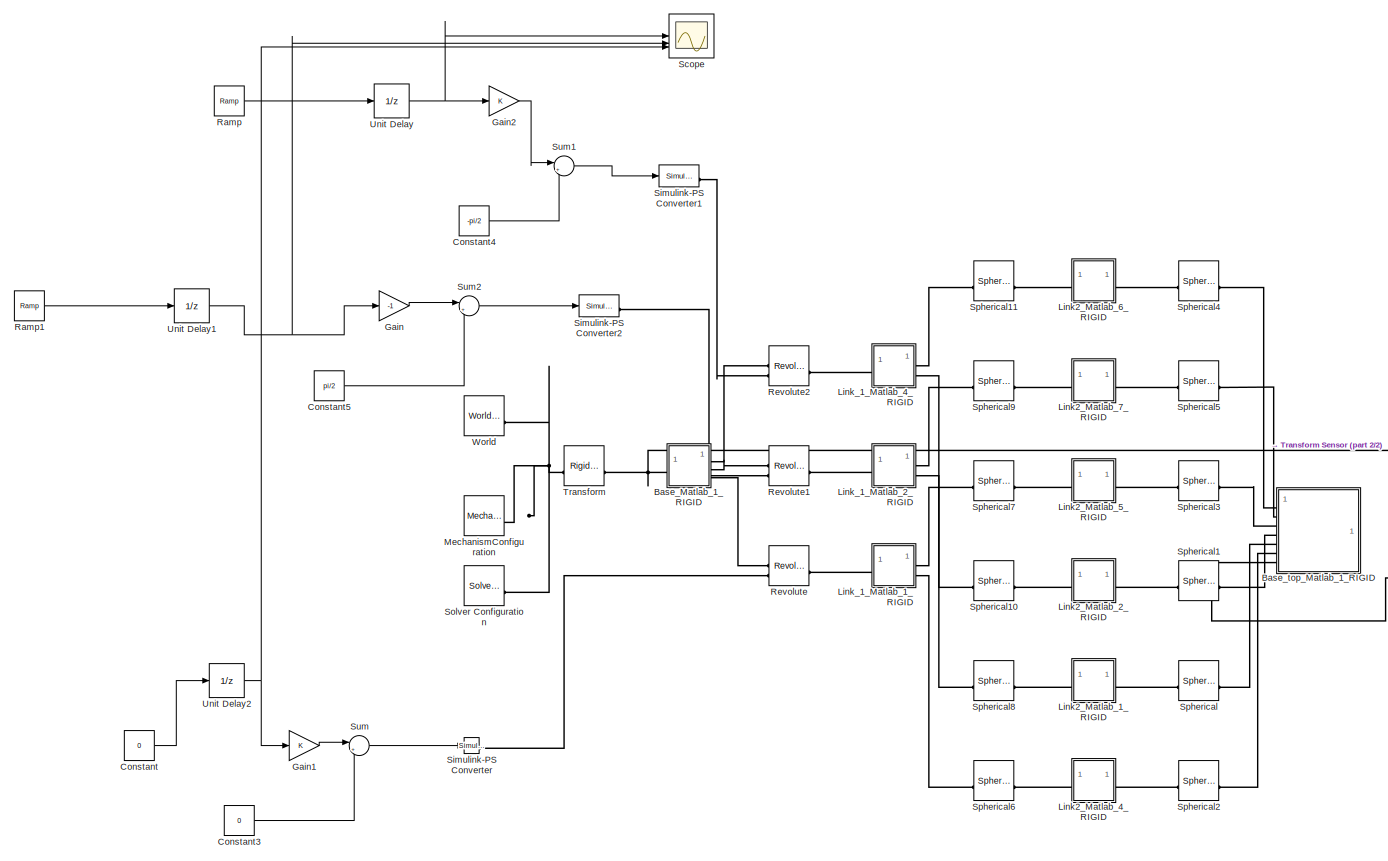
[diagram: root canvas - part 1/2, left side, full height]
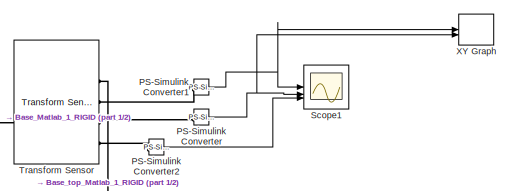
[diagram: root canvas - part 2/2, middle right region]
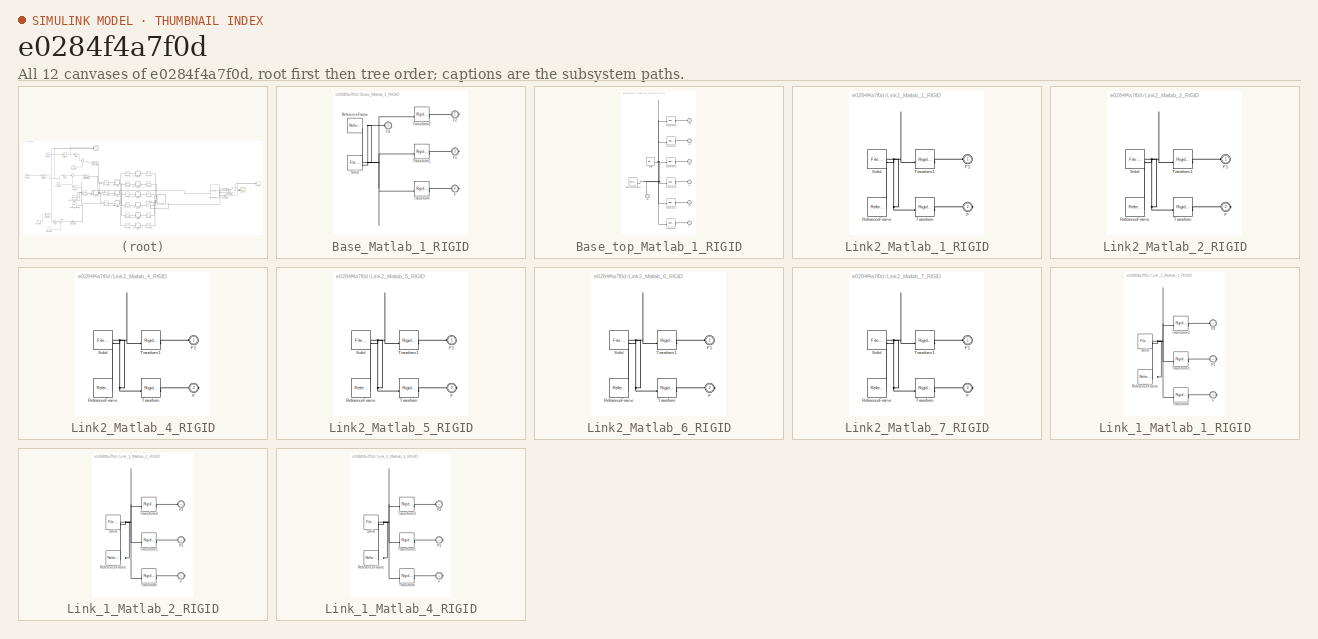
[diagram: thumbnail index - all 12 canvases of the model, root first then tree order]
MODEL slx_e0284f4a7f0d
KIND model
CONFIG AbsTol = auto
CONFIG EnableMultiTasking = off
CONFIG FixedStep = auto
CONFIG MaxStep = auto
CONFIG MinStep = auto
CONFIG RelTol = 0.1
CONFIG SampleTimeConstraint = Unconstrained
CONFIG SolverName = VariableStepAuto
CONFIG StartTime = 0.0
CONFIG StopTime = 12.5
WORKSPACE source: external: MATLAB File  (data not in archive)
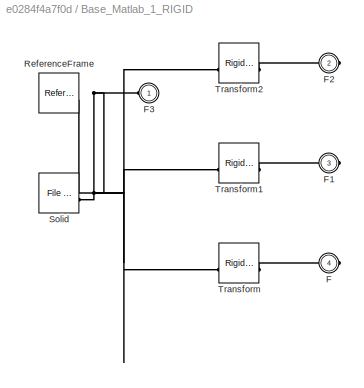
BLOCK [SubSystem] Base_Matlab_1_RIGID
BLOCK [PMIOPort] Base_Matlab_1_RIGID/F
  Port = 4
  Side = Right
BLOCK [PMIOPort] Base_Matlab_1_RIGID/F1
  Port = 3
  Side = Right
BLOCK [PMIOPort] Base_Matlab_1_RIGID/F2
  Port = 2
  Side = Right
BLOCK [PMIOPort] Base_Matlab_1_RIGID/F3
  Side = Left
BLOCK [Reference] Base_Matlab_1_RIGID/ReferenceFrame  REF=sm_lib/Frames and
Transforms/Reference
Frame
  SourceBlock = sm_lib/Frames and\nTransforms/Reference\nFrame
  SourceType = Reference\nFrame
BLOCK [Reference] Base_Matlab_1_RIGID/Solid  REF=sm_lib/Body Elements/File Solid
  SourceBlock = sm_lib/Body Elements/File Solid
  SourceType = File Solid
BLOCK [Reference] Base_Matlab_1_RIGID/Transform  REF=sm_lib/Frames and
Transforms/Rigid
Transform
  SourceBlock = sm_lib/Frames and\nTransforms/Rigid\nTransform
  SourceType = Rigid\nTransform
BLOCK [Reference] Base_Matlab_1_RIGID/Transform1  REF=sm_lib/Frames and
Transforms/Rigid
Transform
  SourceBlock = sm_lib/Frames and\nTransforms/Rigid\nTransform
  SourceType = Rigid\nTransform
BLOCK [Reference] Base_Matlab_1_RIGID/Transform2  REF=sm_lib/Frames and
Transforms/Rigid
Transform
  SourceBlock = sm_lib/Frames and\nTransforms/Rigid\nTransform
  SourceType = Rigid\nTransform
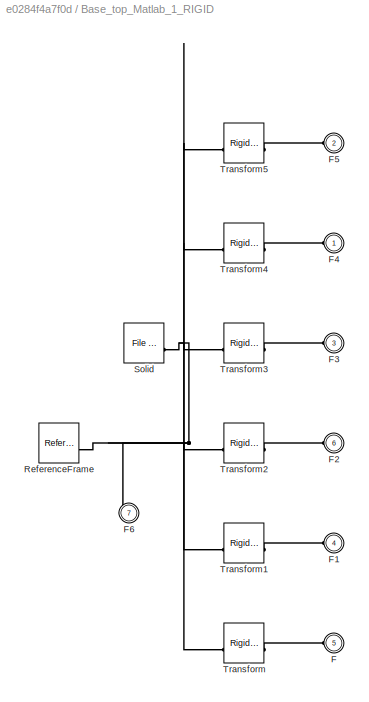
BLOCK [SubSystem] Base_top_Matlab_1_RIGID
BLOCK [PMIOPort] Base_top_Matlab_1_RIGID/F
  Port = 5
  Side = Left
BLOCK [PMIOPort] Base_top_Matlab_1_RIGID/F1
  Port = 4
  Side = Left
BLOCK [PMIOPort] Base_top_Matlab_1_RIGID/F2
  Port = 6
  Side = Left
BLOCK [PMIOPort] Base_top_Matlab_1_RIGID/F3
  Port = 3
  Side = Left
BLOCK [PMIOPort] Base_top_Matlab_1_RIGID/F4
  Side = Left
BLOCK [PMIOPort] Base_top_Matlab_1_RIGID/F5
  Port = 2
  Side = Left
BLOCK [PMIOPort] Base_top_Matlab_1_RIGID/F6
  Port = 7
  Side = Left
BLOCK [Reference] Base_top_Matlab_1_RIGID/ReferenceFrame  REF=sm_lib/Frames and
Transforms/Reference
Frame
  SourceBlock = sm_lib/Frames and\nTransforms/Reference\nFrame
  SourceType = Reference\nFrame
BLOCK [Reference] Base_top_Matlab_1_RIGID/Solid  REF=sm_lib/Body Elements/File Solid
  SourceBlock = sm_lib/Body Elements/File Solid
  SourceType = File Solid
BLOCK [Reference] Base_top_Matlab_1_RIGID/Transform  REF=sm_lib/Frames and
Transforms/Rigid
Transform
  SourceBlock = sm_lib/Frames and\nTransforms/Rigid\nTransform
  SourceType = Rigid\nTransform
BLOCK [Reference] Base_top_Matlab_1_RIGID/Transform1  REF=sm_lib/Frames and
Transforms/Rigid
Transform
  SourceBlock = sm_lib/Frames and\nTransforms/Rigid\nTransform
  SourceType = Rigid\nTransform
BLOCK [Reference] Base_top_Matlab_1_RIGID/Transform2  REF=sm_lib/Frames and
Transforms/Rigid
Transform
  SourceBlock = sm_lib/Frames and\nTransforms/Rigid\nTransform
  SourceType = Rigid\nTransform
BLOCK [Reference] Base_top_Matlab_1_RIGID/Transform3  REF=sm_lib/Frames and
Transforms/Rigid
Transform
  SourceBlock = sm_lib/Frames and\nTransforms/Rigid\nTransform
  SourceType = Rigid\nTransform
BLOCK [Reference] Base_top_Matlab_1_RIGID/Transform4  REF=sm_lib/Frames and
Transforms/Rigid
Transform
  SourceBlock = sm_lib/Frames and\nTransforms/Rigid\nTransform
  SourceType = Rigid\nTransform
BLOCK [Reference] Base_top_Matlab_1_RIGID/Transform5  REF=sm_lib/Frames and
Transforms/Rigid
Transform
  SourceBlock = sm_lib/Frames and\nTransforms/Rigid\nTransform
  SourceType = Rigid\nTransform
BLOCK [Constant] Constant
  Value = 0
BLOCK [Constant] Constant3
  Value = 0
BLOCK [Constant] Constant4
  Value = -pi/2
BLOCK [Constant] Constant5
  Value = pi/2
BLOCK [Gain] Gain
  Gain = -1
BLOCK [Gain] Gain1
BLOCK [Gain] Gain2
BLOCK [SubSystem] Link2_Matlab_1_RIGID
BLOCK [PMIOPort] Link2_Matlab_1_RIGID/F
  Port = 2
  Side = Right
BLOCK [PMIOPort] Link2_Matlab_1_RIGID/F1
  Side = Left
BLOCK [Reference] Link2_Matlab_1_RIGID/ReferenceFrame  REF=sm_lib/Frames and
Transforms/Reference
Frame
  SourceBlock = sm_lib/Frames and\nTransforms/Reference\nFrame
  SourceType = Reference\nFrame
BLOCK [Reference] Link2_Matlab_1_RIGID/Solid  REF=sm_lib/Body Elements/File Solid
  SourceBlock = sm_lib/Body Elements/File Solid
  SourceType = File Solid
BLOCK [Reference] Link2_Matlab_1_RIGID/Transform  REF=sm_lib/Frames and
Transforms/Rigid
Transform
  SourceBlock = sm_lib/Frames and\nTransforms/Rigid\nTransform
  SourceType = Rigid\nTransform
BLOCK [Reference] Link2_Matlab_1_RIGID/Transform1  REF=sm_lib/Frames and
Transforms/Rigid
Transform
  SourceBlock = sm_lib/Frames and\nTransforms/Rigid\nTransform
  SourceType = Rigid\nTransform
BLOCK [SubSystem] Link2_Matlab_2_RIGID
BLOCK [PMIOPort] Link2_Matlab_2_RIGID/F
  Port = 2
  Side = Right
BLOCK [PMIOPort] Link2_Matlab_2_RIGID/F1
  Side = Left
BLOCK [Reference] Link2_Matlab_2_RIGID/ReferenceFrame  REF=sm_lib/Frames and
Transforms/Reference
Frame
  SourceBlock = sm_lib/Frames and\nTransforms/Reference\nFrame
  SourceType = Reference\nFrame
BLOCK [Reference] Link2_Matlab_2_RIGID/Solid  REF=sm_lib/Body Elements/File Solid
  SourceBlock = sm_lib/Body Elements/File Solid
  SourceType = File Solid
BLOCK [Reference] Link2_Matlab_2_RIGID/Transform  REF=sm_lib/Frames and
Transforms/Rigid
Transform
  SourceBlock = sm_lib/Frames and\nTransforms/Rigid\nTransform
  SourceType = Rigid\nTransform
BLOCK [Reference] Link2_Matlab_2_RIGID/Transform1  REF=sm_lib/Frames and
Transforms/Rigid
Transform
  SourceBlock = sm_lib/Frames and\nTransforms/Rigid\nTransform
  SourceType = Rigid\nTransform
BLOCK [SubSystem] Link2_Matlab_4_RIGID
BLOCK [PMIOPort] Link2_Matlab_4_RIGID/F
  Port = 2
  Side = Right
BLOCK [PMIOPort] Link2_Matlab_4_RIGID/F1
  Side = Left
BLOCK [Reference] Link2_Matlab_4_RIGID/ReferenceFrame  REF=sm_lib/Frames and
Transforms/Reference
Frame
  SourceBlock = sm_lib/Frames and\nTransforms/Reference\nFrame
  SourceType = Reference\nFrame
BLOCK [Reference] Link2_Matlab_4_RIGID/Solid  REF=sm_lib/Body Elements/File Solid
  SourceBlock = sm_lib/Body Elements/File Solid
  SourceType = File Solid
BLOCK [Reference] Link2_Matlab_4_RIGID/Transform  REF=sm_lib/Frames and
Transforms/Rigid
Transform
  SourceBlock = sm_lib/Frames and\nTransforms/Rigid\nTransform
  SourceType = Rigid\nTransform
BLOCK [Reference] Link2_Matlab_4_RIGID/Transform1  REF=sm_lib/Frames and
Transforms/Rigid
Transform
  SourceBlock = sm_lib/Frames and\nTransforms/Rigid\nTransform
  SourceType = Rigid\nTransform
BLOCK [SubSystem] Link2_Matlab_5_RIGID
BLOCK [PMIOPort] Link2_Matlab_5_RIGID/F
  Port = 2
  Side = Right
BLOCK [PMIOPort] Link2_Matlab_5_RIGID/F1
  Side = Left
BLOCK [Reference] Link2_Matlab_5_RIGID/ReferenceFrame  REF=sm_lib/Frames and
Transforms/Reference
Frame
  SourceBlock = sm_lib/Frames and\nTransforms/Reference\nFrame
  SourceType = Reference\nFrame
BLOCK [Reference] Link2_Matlab_5_RIGID/Solid  REF=sm_lib/Body Elements/File Solid
  SourceBlock = sm_lib/Body Elements/File Solid
  SourceType = File Solid
BLOCK [Reference] Link2_Matlab_5_RIGID/Transform  REF=sm_lib/Frames and
Transforms/Rigid
Transform
  SourceBlock = sm_lib/Frames and\nTransforms/Rigid\nTransform
  SourceType = Rigid\nTransform
BLOCK [Reference] Link2_Matlab_5_RIGID/Transform1  REF=sm_lib/Frames and
Transforms/Rigid
Transform
  SourceBlock = sm_lib/Frames and\nTransforms/Rigid\nTransform
  SourceType = Rigid\nTransform
BLOCK [SubSystem] Link2_Matlab_6_RIGID
BLOCK [PMIOPort] Link2_Matlab_6_RIGID/F
  Port = 2
  Side = Right
BLOCK [PMIOPort] Link2_Matlab_6_RIGID/F1
  Side = Left
BLOCK [Reference] Link2_Matlab_6_RIGID/ReferenceFrame  REF=sm_lib/Frames and
Transforms/Reference
Frame
  SourceBlock = sm_lib/Frames and\nTransforms/Reference\nFrame
  SourceType = Reference\nFrame
BLOCK [Reference] Link2_Matlab_6_RIGID/Solid  REF=sm_lib/Body Elements/File Solid
  SourceBlock = sm_lib/Body Elements/File Solid
  SourceType = File Solid
BLOCK [Reference] Link2_Matlab_6_RIGID/Transform  REF=sm_lib/Frames and
Transforms/Rigid
Transform
  SourceBlock = sm_lib/Frames and\nTransforms/Rigid\nTransform
  SourceType = Rigid\nTransform
BLOCK [Reference] Link2_Matlab_6_RIGID/Transform1  REF=sm_lib/Frames and
Transforms/Rigid
Transform
  SourceBlock = sm_lib/Frames and\nTransforms/Rigid\nTransform
  SourceType = Rigid\nTransform
BLOCK [SubSystem] Link2_Matlab_7_RIGID
BLOCK [PMIOPort] Link2_Matlab_7_RIGID/F
  Port = 2
  Side = Right
BLOCK [PMIOPort] Link2_Matlab_7_RIGID/F1
  Side = Left
BLOCK [Reference] Link2_Matlab_7_RIGID/ReferenceFrame  REF=sm_lib/Frames and
Transforms/Reference
Frame
  SourceBlock = sm_lib/Frames and\nTransforms/Reference\nFrame
  SourceType = Reference\nFrame
BLOCK [Reference] Link2_Matlab_7_RIGID/Solid  REF=sm_lib/Body Elements/File Solid
  SourceBlock = sm_lib/Body Elements/File Solid
  SourceType = File Solid
BLOCK [Reference] Link2_Matlab_7_RIGID/Transform  REF=sm_lib/Frames and
Transforms/Rigid
Transform
  SourceBlock = sm_lib/Frames and\nTransforms/Rigid\nTransform
  SourceType = Rigid\nTransform
BLOCK [Reference] Link2_Matlab_7_RIGID/Transform1  REF=sm_lib/Frames and
Transforms/Rigid
Transform
  SourceBlock = sm_lib/Frames and\nTransforms/Rigid\nTransform
  SourceType = Rigid\nTransform
BLOCK [SubSystem] Link_1_Matlab_1_RIGID
BLOCK [PMIOPort] Link_1_Matlab_1_RIGID/F
  Port = 3
  Side = Right
BLOCK [PMIOPort] Link_1_Matlab_1_RIGID/F1
  Port = 2
  Side = Right
BLOCK [PMIOPort] Link_1_Matlab_1_RIGID/F2
  Side = Left
BLOCK [Reference] Link_1_Matlab_1_RIGID/ReferenceFrame  REF=sm_lib/Frames and
Transforms/Reference
Frame
  SourceBlock = sm_lib/Frames and\nTransforms/Reference\nFrame
  SourceType = Reference\nFrame
BLOCK [Reference] Link_1_Matlab_1_RIGID/Solid  REF=sm_lib/Body Elements/File Solid
  SourceBlock = sm_lib/Body Elements/File Solid
  SourceType = File Solid
BLOCK [Reference] Link_1_Matlab_1_RIGID/Transform  REF=sm_lib/Frames and
Transforms/Rigid
Transform
  SourceBlock = sm_lib/Frames and\nTransforms/Rigid\nTransform
  SourceType = Rigid\nTransform
BLOCK [Reference] Link_1_Matlab_1_RIGID/Transform1  REF=sm_lib/Frames and
Transforms/Rigid
Transform
  SourceBlock = sm_lib/Frames and\nTransforms/Rigid\nTransform
  SourceType = Rigid\nTransform
BLOCK [Reference] Link_1_Matlab_1_RIGID/Transform2  REF=sm_lib/Frames and
Transforms/Rigid
Transform
  SourceBlock = sm_lib/Frames and\nTransforms/Rigid\nTransform
  SourceType = Rigid\nTransform
BLOCK [SubSystem] Link_1_Matlab_2_RIGID
BLOCK [PMIOPort] Link_1_Matlab_2_RIGID/F
  Port = 3
  Side = Right
BLOCK [PMIOPort] Link_1_Matlab_2_RIGID/F1
  Port = 2
  Side = Right
BLOCK [PMIOPort] Link_1_Matlab_2_RIGID/F2
  Side = Left
BLOCK [Reference] Link_1_Matlab_2_RIGID/ReferenceFrame  REF=sm_lib/Frames and
Transforms/Reference
Frame
  SourceBlock = sm_lib/Frames and\nTransforms/Reference\nFrame
  SourceType = Reference\nFrame
BLOCK [Reference] Link_1_Matlab_2_RIGID/Solid  REF=sm_lib/Body Elements/File Solid
  SourceBlock = sm_lib/Body Elements/File Solid
  SourceType = File Solid
BLOCK [Reference] Link_1_Matlab_2_RIGID/Transform  REF=sm_lib/Frames and
Transforms/Rigid
Transform
  SourceBlock = sm_lib/Frames and\nTransforms/Rigid\nTransform
  SourceType = Rigid\nTransform
BLOCK [Reference] Link_1_Matlab_2_RIGID/Transform1  REF=sm_lib/Frames and
Transforms/Rigid
Transform
  SourceBlock = sm_lib/Frames and\nTransforms/Rigid\nTransform
  SourceType = Rigid\nTransform
BLOCK [Reference] Link_1_Matlab_2_RIGID/Transform2  REF=sm_lib/Frames and
Transforms/Rigid
Transform
  SourceBlock = sm_lib/Frames and\nTransforms/Rigid\nTransform
  SourceType = Rigid\nTransform
BLOCK [SubSystem] Link_1_Matlab_4_RIGID
BLOCK [PMIOPort] Link_1_Matlab_4_RIGID/F
  Port = 3
  Side = Right
BLOCK [PMIOPort] Link_1_Matlab_4_RIGID/F1
  Port = 2
  Side = Right
BLOCK [PMIOPort] Link_1_Matlab_4_RIGID/F2
  Side = Left
BLOCK [Reference] Link_1_Matlab_4_RIGID/ReferenceFrame  REF=sm_lib/Frames and
Transforms/Reference
Frame
  SourceBlock = sm_lib/Frames and\nTransforms/Reference\nFrame
  SourceType = Reference\nFrame
BLOCK [Reference] Link_1_Matlab_4_RIGID/Solid  REF=sm_lib/Body Elements/File Solid
  SourceBlock = sm_lib/Body Elements/File Solid
  SourceType = File Solid
BLOCK [Reference] Link_1_Matlab_4_RIGID/Transform  REF=sm_lib/Frames and
Transforms/Rigid
Transform
  SourceBlock = sm_lib/Frames and\nTransforms/Rigid\nTransform
  SourceType = Rigid\nTransform
BLOCK [Reference] Link_1_Matlab_4_RIGID/Transform1  REF=sm_lib/Frames and
Transforms/Rigid
Transform
  SourceBlock = sm_lib/Frames and\nTransforms/Rigid\nTransform
  SourceType = Rigid\nTransform
BLOCK [Reference] Link_1_Matlab_4_RIGID/Transform2  REF=sm_lib/Frames and
Transforms/Rigid
Transform
  SourceBlock = sm_lib/Frames and\nTransforms/Rigid\nTransform
  SourceType = Rigid\nTransform
BLOCK [Reference] MechanismConfiguration  REF=sm_lib/Utilities/Mechanism
Configuration
  SourceBlock = sm_lib/Utilities/Mechanism\nConfiguration
  SourceType = Mechanism\nConfiguration
BLOCK [Reference] PS-Simulink Converter  REF=nesl_utility/PS-Simulink
Converter
  SourceBlock = nesl_utility/PS-Simulink\nConverter
  SourceType = PS-Simulink\nConverter
BLOCK [Reference] PS-Simulink Converter1  REF=nesl_utility/PS-Simulink
Converter
  SourceBlock = nesl_utility/PS-Simulink\nConverter
  SourceType = PS-Simulink\nConverter
BLOCK [Reference] PS-Simulink Converter2  REF=nesl_utility/PS-Simulink
Converter
  SourceBlock = nesl_utility/PS-Simulink\nConverter
  SourceType = PS-Simulink\nConverter
BLOCK [Reference] Ramp  REF=simulink/Sources/Ramp
  SourceBlock = simulink/Sources/Ramp
  SourceType = Ramp
BLOCK [Reference] Ramp1  REF=simulink/Sources/Ramp
  SourceBlock = simulink/Sources/Ramp
  SourceType = Ramp
BLOCK [Reference] Revolute  REF=sm_lib/Joints/Revolute Joint
  SourceBlock = sm_lib/Joints/Revolute Joint
  SourceType = Revolute Joint
BLOCK [Reference] Revolute1  REF=sm_lib/Joints/Revolute Joint
  SourceBlock = sm_lib/Joints/Revolute Joint
  SourceType = Revolute Joint
BLOCK [Reference] Revolute2  REF=sm_lib/Joints/Revolute Joint
  SourceBlock = sm_lib/Joints/Revolute Joint
  SourceType = Revolute Joint
BLOCK [Scope] Scope
  Floating = off
  NumInputPorts = 3
  ScopeSpecificationString = Simulink.scopes.TimeScopeBlockCfg('CurrentConfiguration', extmgr.ConfigurationSet(extmgr.Configuration('Core','General UI',true),extmgr.Configuration('Core','Source UI',true),extmgr.Configuration('Sources','WiredSimulink',true),extmgr.Configuration('Visuals','Time Domain',true,'SerializedDisplays',{struct('MinYLimReal','-0.09817','MaxYLimReal','0.8835','YLabelReal','','MinYLimMag','0.00000','MaxYL...<+1389ch>
BLOCK [Scope] Scope1
  Floating = off
  NumInputPorts = 3
  ScopeSpecificationString = Simulink.scopes.TimeScopeBlockCfg('CurrentConfiguration', extmgr.ConfigurationSet(extmgr.Configuration('Core','General UI',true),extmgr.Configuration('Core','Source UI',true),extmgr.Configuration('Sources','WiredSimulink',true,'DataLoggingVariableName','ScopeData1'),extmgr.Configuration('Visuals','Time Domain',true,'SerializedDisplays',{struct('MinYLimReal','-0.04678','MaxYLimReal','0.42035','YLab...<+1500ch>
BLOCK [Reference] Simulink-PS Converter  REF=nesl_utility/Simulink-PS
Converter
  SourceBlock = nesl_utility/Simulink-PS\nConverter
  SourceType = Simulink-PS\nConverter
BLOCK [Reference] Simulink-PS Converter1  REF=nesl_utility/Simulink-PS
Converter
  SourceBlock = nesl_utility/Simulink-PS\nConverter
  SourceType = Simulink-PS\nConverter
BLOCK [Reference] Simulink-PS Converter2  REF=nesl_utility/Simulink-PS
Converter
  SourceBlock = nesl_utility/Simulink-PS\nConverter
  SourceType = Simulink-PS\nConverter
BLOCK [Reference] Solver Configuration  REF=nesl_utility/Solver
Configuration
  SourceBlock = nesl_utility/Solver\nConfiguration
  SourceType = Solver\nConfiguration
BLOCK [Reference] Spherical  REF=sm_lib/Joints/Spherical
Joint
  SourceBlock = sm_lib/Joints/Spherical\nJoint
  SourceType = Spherical\nJoint
BLOCK [Reference] Spherical1  REF=sm_lib/Joints/Spherical
Joint
  SourceBlock = sm_lib/Joints/Spherical\nJoint
  SourceType = Spherical\nJoint
BLOCK [Reference] Spherical10  REF=sm_lib/Joints/Spherical
Joint
  SourceBlock = sm_lib/Joints/Spherical\nJoint
  SourceType = Spherical\nJoint
BLOCK [Reference] Spherical11  REF=sm_lib/Joints/Spherical
Joint
  SourceBlock = sm_lib/Joints/Spherical\nJoint
  SourceType = Spherical\nJoint
BLOCK [Reference] Spherical2  REF=sm_lib/Joints/Spherical
Joint
  SourceBlock = sm_lib/Joints/Spherical\nJoint
  SourceType = Spherical\nJoint
BLOCK [Reference] Spherical3  REF=sm_lib/Joints/Spherical
Joint
  SourceBlock = sm_lib/Joints/Spherical\nJoint
  SourceType = Spherical\nJoint
BLOCK [Reference] Spherical4  REF=sm_lib/Joints/Spherical
Joint
  SourceBlock = sm_lib/Joints/Spherical\nJoint
  SourceType = Spherical\nJoint
BLOCK [Reference] Spherical5  REF=sm_lib/Joints/Spherical
Joint
  SourceBlock = sm_lib/Joints/Spherical\nJoint
  SourceType = Spherical\nJoint
BLOCK [Reference] Spherical6  REF=sm_lib/Joints/Spherical
Joint
  SourceBlock = sm_lib/Joints/Spherical\nJoint
  SourceType = Spherical\nJoint
BLOCK [Reference] Spherical7  REF=sm_lib/Joints/Spherical
Joint
  SourceBlock = sm_lib/Joints/Spherical\nJoint
  SourceType = Spherical\nJoint
BLOCK [Reference] Spherical8  REF=sm_lib/Joints/Spherical
Joint
  SourceBlock = sm_lib/Joints/Spherical\nJoint
  SourceType = Spherical\nJoint
BLOCK [Reference] Spherical9  REF=sm_lib/Joints/Spherical
Joint
  SourceBlock = sm_lib/Joints/Spherical\nJoint
  SourceType = Spherical\nJoint
BLOCK [Sum] Sum
  Inputs = |++
BLOCK [Sum] Sum1
  Inputs = |++
BLOCK [Sum] Sum2
  Inputs = |++
BLOCK [Reference] Transform  REF=sm_lib/Frames and
Transforms/Rigid
Transform
  SourceBlock = sm_lib/Frames and\nTransforms/Rigid\nTransform
  SourceType = Rigid\nTransform
BLOCK [Reference] Transform Sensor  REF=sm_lib/Frames and
Transforms/Transform
Sensor
  SourceBlock = sm_lib/Frames and\nTransforms/Transform\nSensor
  SourceType = Transform\nSensor
BLOCK [UnitDelay] Unit Delay
  HasFrameUpgradeWarning = on
  SampleTime = 0.001
BLOCK [UnitDelay] Unit Delay1
  HasFrameUpgradeWarning = on
  SampleTime = 0.001
BLOCK [UnitDelay] Unit Delay2
  HasFrameUpgradeWarning = on
  SampleTime = 0.001
BLOCK [Reference] World  REF=sm_lib/Frames and
Transforms/World Frame
  SourceBlock = sm_lib/Frames and\nTransforms/World Frame
  SourceType = World Frame
BLOCK [Record] XY Graph
  CompatibilityTag = XY
  FileSettingsInternal = {"entries":[{"content":{"excelSettings":{"content":{},"type":"Streamout.ExcelSettings"}},"type":"Streamout.FileSettingStorage","uuid":"ea16f2cd-e58b-4401-8cf8-796659a1b9ff"}],"packageUris":["http://schema.mathworks.com/mf0/streamout_blocks/R2020a"],"version":"1.0"}
  Layout = [1 1]
  SignalsInternal = {"entries":[{"content":{"signals":[{"content":{"blockPath":["AssemRobot_Matlab11111/XY Graph"],"channel":[],"dimensions":[1,1],"domain":"AssemRobot_Matlab11111/XY Graph","lineColor":"#a2142f","plots":[1],"port":1,"sid":[""],"signalID":665,"signalName":"PS-Simulink\nConverter1"},"type":"RecordBlkView.Signal","uuid":"e63ecd38-9044-4621-845d-c5880cd5998a"},{"content":{"blockPath":["AssemRobot_Matlab1...<+452ch>
  VisualizationBindings = {"xyplotplugin":{"info":[{"series":[{"bindingParametersList":[{"parameter":"X-Axis","signalID":665,"signalName":"PS-Simulink\nConverter1"},{"parameter":"Y-Axis","signalID":669,"signalName":"PS-Simulink\nConverter"}],"seriesID":60150}],"subplotID":1}]}}
LINE Constant3:1 -> Sum:2
LINE Constant4:1 -> Sum1:2
LINE Constant5:1 -> Sum2:2
LINE Constant:1 -> Unit Delay2:1
LINE Gain1:1 -> Sum:1
LINE Gain2:1 -> Sum1:1
LINE Gain:1 -> Sum2:1
NET PS-Simulink Converter1:1 -> Scope1:1, XY Graph:1
LINE PS-Simulink Converter2:1 -> Scope1:3
NET PS-Simulink Converter:1 -> Scope1:2, XY Graph:2
LINE Ramp1:1 -> Unit Delay1:1
LINE Ramp:1 -> Unit Delay:1
LINE Sum1:1 -> Simulink-PS Converter1:1
LINE Sum2:1 -> Simulink-PS Converter2:1
LINE Sum:1 -> Simulink-PS Converter:1
NET Unit Delay1:1 -> Gain:1, Scope:2
NET Unit Delay2:1 -> Gain1:1, Scope:3
NET Unit Delay:1 -> Gain2:1, Scope:1
PLINE Base_Matlab_1_RIGID/F1:RConn1 -- Base_Matlab_1_RIGID/Transform1:RConn1
PLINE Base_Matlab_1_RIGID/F2:RConn1 -- Base_Matlab_1_RIGID/Transform2:RConn1
PNET net1: Base_Matlab_1_RIGID/F3:RConn1 -- Base_Matlab_1_RIGID/ReferenceFrame:RConn1 -- Base_Matlab_1_RIGID/Solid:RConn1 -- Base_Matlab_1_RIGID/Transform1:LConn1 -- Base_Matlab_1_RIGID/Transform2:LConn1 -- Base_Matlab_1_RIGID/Transform:LConn1
PLINE Base_Matlab_1_RIGID/F:RConn1 -- Base_Matlab_1_RIGID/Transform:RConn1
PNET net2: Base_Matlab_1_RIGID:LConn1 -- Transform Sensor:LConn1 -- Transform:RConn1
PLINE Base_Matlab_1_RIGID:RConn1 -- Revolute2:LConn1
PLINE Base_Matlab_1_RIGID:RConn2 -- Revolute1:LConn1
PLINE Base_Matlab_1_RIGID:RConn3 -- Revolute:LConn1
PLINE Base_top_Matlab_1_RIGID/F1:RConn1 -- Base_top_Matlab_1_RIGID/Transform1:RConn1
PLINE Base_top_Matlab_1_RIGID/F2:RConn1 -- Base_top_Matlab_1_RIGID/Transform2:RConn1
PLINE Base_top_Matlab_1_RIGID/F3:RConn1 -- Base_top_Matlab_1_RIGID/Transform3:RConn1
PLINE Base_top_Matlab_1_RIGID/F4:RConn1 -- Base_top_Matlab_1_RIGID/Transform4:RConn1
PLINE Base_top_Matlab_1_RIGID/F5:RConn1 -- Base_top_Matlab_1_RIGID/Transform5:RConn1
PNET net3: Base_top_Matlab_1_RIGID/F6:RConn1 -- Base_top_Matlab_1_RIGID/ReferenceFrame:RConn1 -- Base_top_Matlab_1_RIGID/Solid:RConn1 -- Base_top_Matlab_1_RIGID/Transform1:LConn1 -- Base_top_Matlab_1_RIGID/Transform2:LConn1 -- Base_top_Matlab_1_RIGID/Transform3:LConn1 -- Base_top_Matlab_1_RIGID/Transform4:LConn1 -- Base_top_Matlab_1_RIGID/Transform5:LConn1 -- Base_top_Matlab_1_RIGID/Transform:LConn1
PLINE Base_top_Matlab_1_RIGID/F:RConn1 -- Base_top_Matlab_1_RIGID/Transform:RConn1
PLINE Base_top_Matlab_1_RIGID:LConn1 -- Spherical4:RConn1
PLINE Base_top_Matlab_1_RIGID:LConn2 -- Spherical5:RConn1
PLINE Base_top_Matlab_1_RIGID:LConn3 -- Spherical3:RConn1
PLINE Base_top_Matlab_1_RIGID:LConn4 -- Spherical1:RConn1
PLINE Base_top_Matlab_1_RIGID:LConn5 -- Spherical:RConn1
PLINE Base_top_Matlab_1_RIGID:LConn6 -- Spherical2:RConn1
PLINE Base_top_Matlab_1_RIGID:LConn7 -- Transform Sensor:RConn1
PLINE Link2_Matlab_1_RIGID/F1:RConn1 -- Link2_Matlab_1_RIGID/Transform1:RConn1
PLINE Link2_Matlab_1_RIGID/F:RConn1 -- Link2_Matlab_1_RIGID/Transform:RConn1
PNET net4: Link2_Matlab_1_RIGID/ReferenceFrame:RConn1 -- Link2_Matlab_1_RIGID/Solid:RConn1 -- Link2_Matlab_1_RIGID/Transform1:LConn1 -- Link2_Matlab_1_RIGID/Transform:LConn1
PLINE Link2_Matlab_1_RIGID:LConn1 -- Spherical8:RConn1
PLINE Link2_Matlab_1_RIGID:RConn1 -- Spherical:LConn1
PLINE Link2_Matlab_2_RIGID/F1:RConn1 -- Link2_Matlab_2_RIGID/Transform1:RConn1
PLINE Link2_Matlab_2_RIGID/F:RConn1 -- Link2_Matlab_2_RIGID/Transform:RConn1
PNET net5: Link2_Matlab_2_RIGID/ReferenceFrame:RConn1 -- Link2_Matlab_2_RIGID/Solid:RConn1 -- Link2_Matlab_2_RIGID/Transform1:LConn1 -- Link2_Matlab_2_RIGID/Transform:LConn1
PLINE Link2_Matlab_2_RIGID:LConn1 -- Spherical10:RConn1
PLINE Link2_Matlab_2_RIGID:RConn1 -- Spherical1:LConn1
PLINE Link2_Matlab_4_RIGID/F1:RConn1 -- Link2_Matlab_4_RIGID/Transform1:RConn1
PLINE Link2_Matlab_4_RIGID/F:RConn1 -- Link2_Matlab_4_RIGID/Transform:RConn1
PNET net6: Link2_Matlab_4_RIGID/ReferenceFrame:RConn1 -- Link2_Matlab_4_RIGID/Solid:RConn1 -- Link2_Matlab_4_RIGID/Transform1:LConn1 -- Link2_Matlab_4_RIGID/Transform:LConn1
PLINE Link2_Matlab_4_RIGID:LConn1 -- Spherical6:RConn1
PLINE Link2_Matlab_4_RIGID:RConn1 -- Spherical2:LConn1
PLINE Link2_Matlab_5_RIGID/F1:RConn1 -- Link2_Matlab_5_RIGID/Transform1:RConn1
PLINE Link2_Matlab_5_RIGID/F:RConn1 -- Link2_Matlab_5_RIGID/Transform:RConn1
PNET net7: Link2_Matlab_5_RIGID/ReferenceFrame:RConn1 -- Link2_Matlab_5_RIGID/Solid:RConn1 -- Link2_Matlab_5_RIGID/Transform1:LConn1 -- Link2_Matlab_5_RIGID/Transform:LConn1
PLINE Link2_Matlab_5_RIGID:LConn1 -- Spherical7:RConn1
PLINE Link2_Matlab_5_RIGID:RConn1 -- Spherical3:LConn1
PLINE Link2_Matlab_6_RIGID/F1:RConn1 -- Link2_Matlab_6_RIGID/Transform1:RConn1
PLINE Link2_Matlab_6_RIGID/F:RConn1 -- Link2_Matlab_6_RIGID/Transform:RConn1
PNET net8: Link2_Matlab_6_RIGID/ReferenceFrame:RConn1 -- Link2_Matlab_6_RIGID/Solid:RConn1 -- Link2_Matlab_6_RIGID/Transform1:LConn1 -- Link2_Matlab_6_RIGID/Transform:LConn1
PLINE Link2_Matlab_6_RIGID:LConn1 -- Spherical11:RConn1
PLINE Link2_Matlab_6_RIGID:RConn1 -- Spherical4:LConn1
PLINE Link2_Matlab_7_RIGID/F1:RConn1 -- Link2_Matlab_7_RIGID/Transform1:RConn1
PLINE Link2_Matlab_7_RIGID/F:RConn1 -- Link2_Matlab_7_RIGID/Transform:RConn1
PNET net9: Link2_Matlab_7_RIGID/ReferenceFrame:RConn1 -- Link2_Matlab_7_RIGID/Solid:RConn1 -- Link2_Matlab_7_RIGID/Transform1:LConn1 -- Link2_Matlab_7_RIGID/Transform:LConn1
PLINE Link2_Matlab_7_RIGID:LConn1 -- Spherical9:RConn1
PLINE Link2_Matlab_7_RIGID:RConn1 -- Spherical5:LConn1
PLINE Link_1_Matlab_1_RIGID/F1:RConn1 -- Link_1_Matlab_1_RIGID/Transform1:RConn1
PLINE Link_1_Matlab_1_RIGID/F2:RConn1 -- Link_1_Matlab_1_RIGID/Transform2:RConn1
PLINE Link_1_Matlab_1_RIGID/F:RConn1 -- Link_1_Matlab_1_RIGID/Transform:RConn1
PNET net10: Link_1_Matlab_1_RIGID/ReferenceFrame:RConn1 -- Link_1_Matlab_1_RIGID/Solid:RConn1 -- Link_1_Matlab_1_RIGID/Transform1:LConn1 -- Link_1_Matlab_1_RIGID/Transform2:LConn1 -- Link_1_Matlab_1_RIGID/Transform:LConn1
PLINE Link_1_Matlab_1_RIGID:LConn1 -- Revolute:RConn1
PLINE Link_1_Matlab_1_RIGID:RConn1 -- Spherical7:LConn1
PLINE Link_1_Matlab_1_RIGID:RConn2 -- Spherical6:LConn1
PLINE Link_1_Matlab_2_RIGID/F1:RConn1 -- Link_1_Matlab_2_RIGID/Transform1:RConn1
PLINE Link_1_Matlab_2_RIGID/F2:RConn1 -- Link_1_Matlab_2_RIGID/Transform2:RConn1
PLINE Link_1_Matlab_2_RIGID/F:RConn1 -- Link_1_Matlab_2_RIGID/Transform:RConn1
PNET net11: Link_1_Matlab_2_RIGID/ReferenceFrame:RConn1 -- Link_1_Matlab_2_RIGID/Solid:RConn1 -- Link_1_Matlab_2_RIGID/Transform1:LConn1 -- Link_1_Matlab_2_RIGID/Transform2:LConn1 -- Link_1_Matlab_2_RIGID/Transform:LConn1
PLINE Link_1_Matlab_2_RIGID:LConn1 -- Revolute1:RConn1
PLINE Link_1_Matlab_2_RIGID:RConn1 -- Spherical9:LConn1
PLINE Link_1_Matlab_2_RIGID:RConn2 -- Spherical8:LConn1
PLINE Link_1_Matlab_4_RIGID/F1:RConn1 -- Link_1_Matlab_4_RIGID/Transform1:RConn1
PLINE Link_1_Matlab_4_RIGID/F2:RConn1 -- Link_1_Matlab_4_RIGID/Transform2:RConn1
PLINE Link_1_Matlab_4_RIGID/F:RConn1 -- Link_1_Matlab_4_RIGID/Transform:RConn1
PNET net12: Link_1_Matlab_4_RIGID/ReferenceFrame:RConn1 -- Link_1_Matlab_4_RIGID/Solid:RConn1 -- Link_1_Matlab_4_RIGID/Transform1:LConn1 -- Link_1_Matlab_4_RIGID/Transform2:LConn1 -- Link_1_Matlab_4_RIGID/Transform:LConn1
PLINE Link_1_Matlab_4_RIGID:LConn1 -- Revolute2:RConn1
PLINE Link_1_Matlab_4_RIGID:RConn1 -- Spherical11:LConn1
PLINE Link_1_Matlab_4_RIGID:RConn2 -- Spherical10:LConn1
PNET net13: MechanismConfiguration:RConn1 -- Solver Configuration:RConn1 -- Transform:LConn1 -- World:RConn1
PLINE PS-Simulink Converter1:LConn1 -- Transform Sensor:RConn2
PLINE PS-Simulink Converter2:LConn1 -- Transform Sensor:RConn4
PLINE PS-Simulink Converter:LConn1 -- Transform Sensor:RConn3
PLINE Revolute1:LConn2 -- Simulink-PS Converter2:RConn1
PLINE Revolute2:LConn2 -- Simulink-PS Converter1:RConn1
PLINE Revolute:LConn2 -- Simulink-PS Converter:RConn1
note: NET lines group one-source signal fan-out (src -> all destinations, sorted); 1:1 wires keep LINE; PNET lines group multi-terminal physical nets as a canonical sorted terminal list (undirected conserving connections); 2-terminal nets keep the pairwise PLINE form
